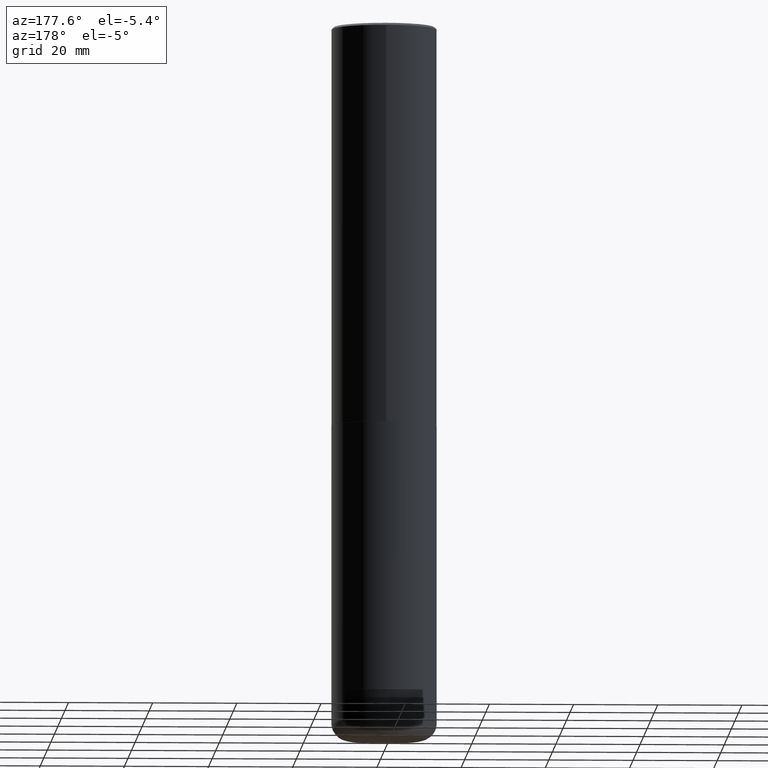
[diagram: clean part render]
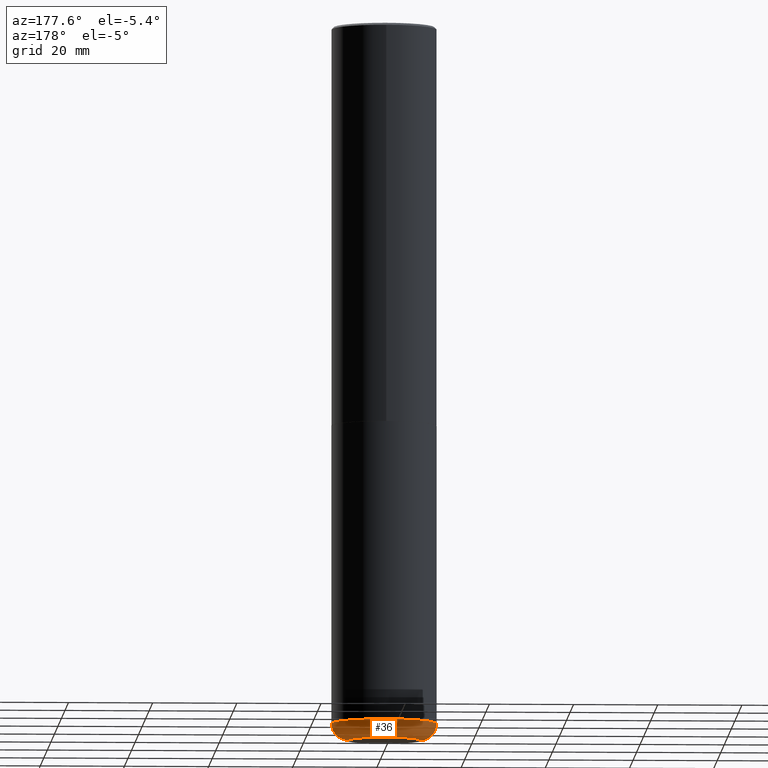
[diagram: same view with one face highlighted and labeled with its STEP entity id]
A machine part, auxiliary view. The second image highlights one B-rep face of the part: STEP entity #36.
In plain terms, the highlighted toroidal blend (fillet) surface has major radius 8.5001 mm and minor (blend) radius 4.0005 mm.
Its self-contained STEP definition (entity closure, byte-faithful):
#8 = EDGE_CURVE ( 'NONE', #254, #222, #314, .T. ) ;
#24 = CARTESIAN_POINT ( 'NONE',  ( 1.598211683594234343E-28, -2.281822714187549288E-14, -6.535400000000000098 ) ) ;
#32 = EDGE_LOOP ( 'NONE', ( #292, #293, #229, #114 ) ) ;
#34 = AXIS2_PLACEMENT_3D ( 'NONE', #283, #121, #413 ) ;
#36 = ADVANCED_FACE ( 'NONE', ( #203 ), #282, .T. ) ;
#37 = CARTESIAN_POINT ( 'NONE',  ( 0.4921499999999999764, -2.625489222369879024E-14, -6.535400000000000098 ) ) ;
#53 = DIRECTION ( 'NONE',  ( 7.105427357601001859E-15, 1.000000000000000000, -3.491481338843145583E-15 ) ) ;
#58 = CARTESIAN_POINT ( 'NONE',  ( -0.3346499999999999475, -2.044039587665432153E-14, -6.535400000000000098 ) ) ;
#70 = DIRECTION ( 'NONE',  ( 1.000000000000000000, -6.982962677686268288E-15, 4.883557194083113462E-29 ) ) ;
#97 = DIRECTION ( 'NONE',  ( -2.445468806185136597E-29, 3.491481338843145583E-15, 1.000000000000000000 ) ) ;
#113 = DIRECTION ( 'NONE',  ( 1.000000000000000000, -6.982962677686265133E-15, 0.000000000000000000 ) ) ;
#114 = ORIENTED_EDGE ( 'NONE', *, *, #263, .F. ) ;
#121 = DIRECTION ( 'NONE',  ( -6.982962677686266711E-15, -1.000000000000000000, 3.491481338843145583E-15 ) ) ;
#149 = DIRECTION ( 'NONE',  ( -1.000000000000000000, 7.105427357600989237E-15, 0.000000000000000000 ) ) ;
#154 = CARTESIAN_POINT ( 'NONE',  ( -0.3346499999999999475, -2.015579762767713625E-14, -6.692899999999999849 ) ) ;
#161 = AXIS2_PLACEMENT_3D ( 'NONE', #24, #97, #113 ) ;
#184 = EDGE_CURVE ( 'NONE', #222, #192, #349, .T. ) ;
#192 = VERTEX_POINT ( 'NONE', #209 ) ;
#203 = FACE_OUTER_BOUND ( 'NONE', #32, .T. ) ;
#209 = CARTESIAN_POINT ( 'NONE',  ( -0.4921499999999999764, -1.932129106783216551E-14, -6.535400000000000098 ) ) ;
#222 = VERTEX_POINT ( 'NONE', #154 ) ;
#229 = ORIENTED_EDGE ( 'NONE', *, *, #312, .F. ) ;
#240 = CARTESIAN_POINT ( 'NONE',  ( 1.598211683594234343E-28, -2.281822714187549288E-14, -6.535400000000000098 ) ) ;
#254 = VERTEX_POINT ( 'NONE', #313 ) ;
#263 = EDGE_CURVE ( 'NONE', #254, #326, #417, .T. ) ;
#265 = AXIS2_PLACEMENT_3D ( 'NONE', #300, #366, #331 ) ;
#282 = TOROIDAL_SURFACE ( 'NONE', #384, 0.3346499999999999475, 0.1574999999999998623 ) ;
#283 = CARTESIAN_POINT ( 'NONE',  ( 0.3346499999999999475, -2.515507560196320354E-14, -6.535400000000000098 ) ) ;
#292 = ORIENTED_EDGE ( 'NONE', *, *, #8, .T. ) ;
#293 = ORIENTED_EDGE ( 'NONE', *, *, #184, .T. ) ;
#300 = CARTESIAN_POINT ( 'NONE',  ( 1.636727817291649966E-28, -2.336813545274328780E-14, -6.692899999999999849 ) ) ;
#312 = EDGE_CURVE ( 'NONE', #326, #192, #340, .T. ) ;
#313 = CARTESIAN_POINT ( 'NONE',  ( 0.3346499999999999475, -2.570498391283099847E-14, -6.692899999999999849 ) ) ;
#314 = CIRCLE ( 'NONE', #265, 0.3346499999999999475 ) ;
#326 = VERTEX_POINT ( 'NONE', #37 ) ;
#331 = DIRECTION ( 'NONE',  ( 1.000000000000000000, -6.982962677686269077E-15, 0.000000000000000000 ) ) ;
#340 = CIRCLE ( 'NONE', #161, 0.4921500000000000319 ) ;
#349 = CIRCLE ( 'NONE', #409, 0.1574999999999998901 ) ;
#366 = DIRECTION ( 'NONE',  ( -2.445468806185136597E-29, 3.491481338843145583E-15, 1.000000000000000000 ) ) ;
#384 = AXIS2_PLACEMENT_3D ( 'NONE', #240, #390, #70 ) ;
#390 = DIRECTION ( 'NONE',  ( -2.445468806185136597E-29, 3.491481338843145583E-15, 1.000000000000000000 ) ) ;
#409 = AXIS2_PLACEMENT_3D ( 'NONE', #58, #53, #149 ) ;
#413 = DIRECTION ( 'NONE',  ( 1.000000000000000000, -6.982962677686266711E-15, 0.000000000000000000 ) ) ;
#417 = CIRCLE ( 'NONE', #34, 0.1574999999999998901 ) ;